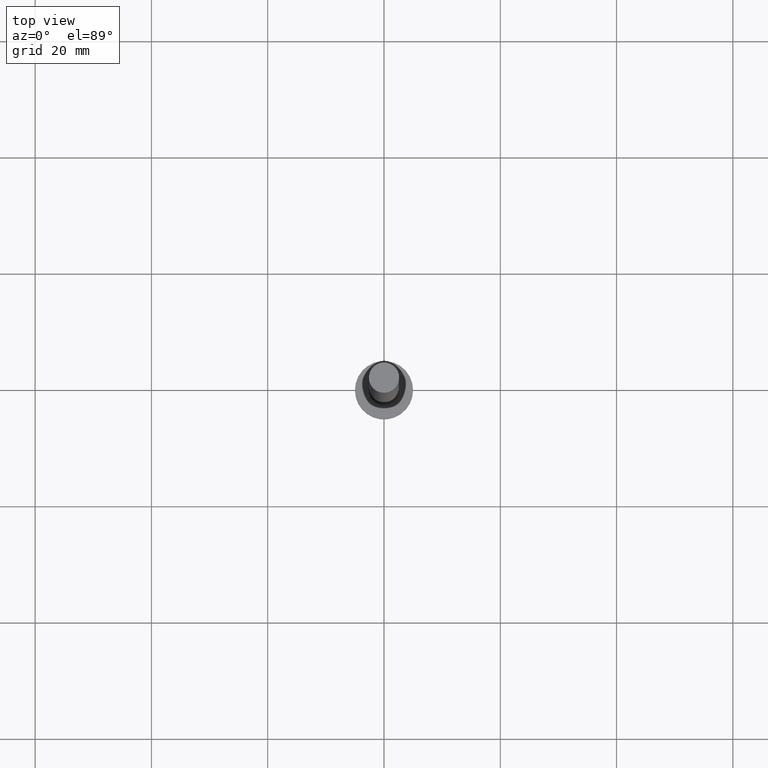
[diagram: clean part render]
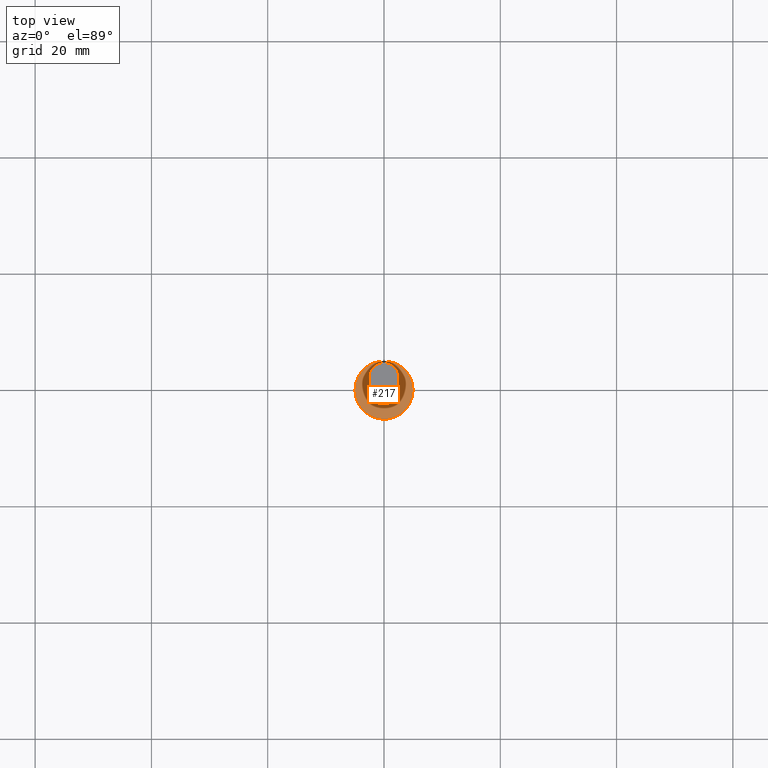
[diagram: same view with one face highlighted and labeled with its STEP entity id]
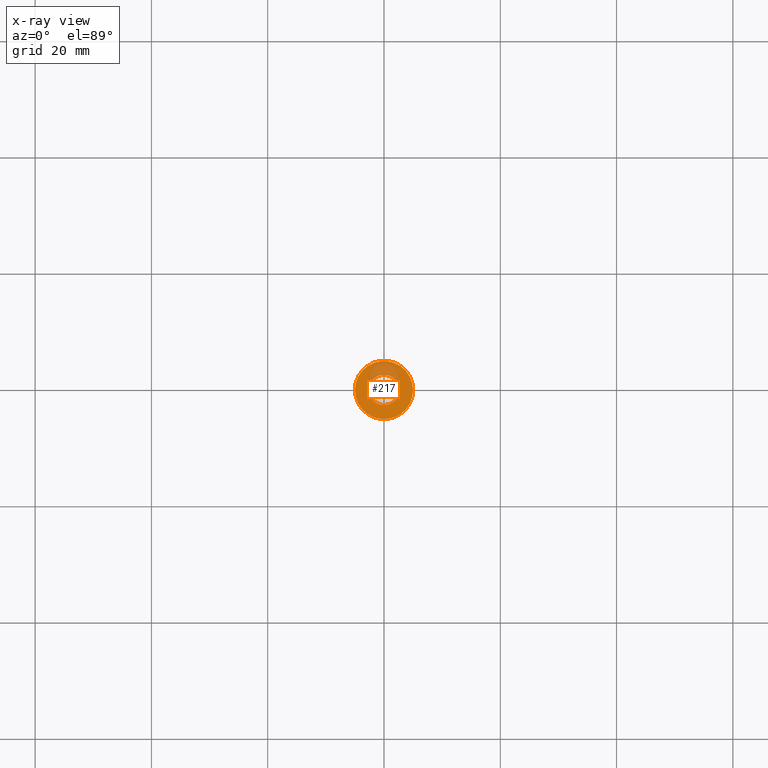
[diagram: x-ray of the same camera — body ghosted, the highlighted face saturated]
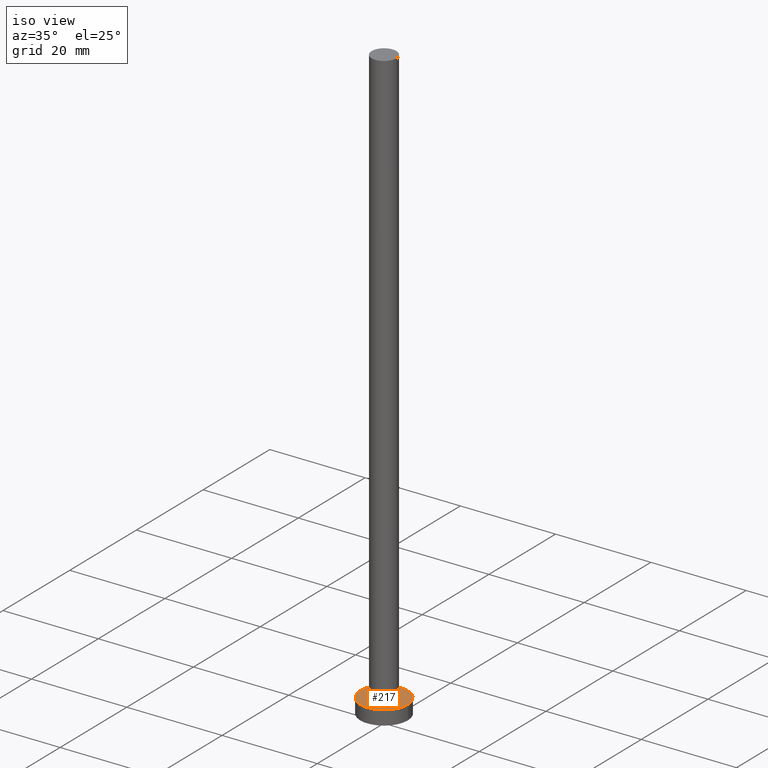
[diagram: same view with one face highlighted and labeled with its STEP entity id]
A machine part, top view. The second image highlights one B-rep face of the part: STEP entity #217.
The next image is the same camera in x-ray: the body ghosted, the highlighted face saturated — about 19% of this face is hidden behind the body in this view.
A second angle (iso view) of the same face is appended — the face is thin or edge-on in the first view.
In plain terms, the highlighted planar face has unit normal (0, 0, 1).
Its self-contained STEP definition (entity closure, byte-faithful):
#9 = DIRECTION ( 'NONE',  ( 0.000000000000000000, 0.000000000000000000, 1.000000000000000000 ) ) ;
#11 = CIRCLE ( 'NONE', #184, 5.000000000000000000 ) ;
#24 = VERTEX_POINT ( 'NONE', #225 ) ;
#29 = ORIENTED_EDGE ( 'NONE', *, *, #233, .F. ) ;
#31 = EDGE_CURVE ( 'NONE', #221, #209, #177, .T. ) ;
#32 = AXIS2_PLACEMENT_3D ( 'NONE', #206, #250, #67 ) ;
#35 = DIRECTION ( 'NONE',  ( 1.000000000000000000, 0.000000000000000000, 0.000000000000000000 ) ) ;
#43 = DIRECTION ( 'NONE',  ( 0.000000000000000000, 0.000000000000000000, 1.000000000000000000 ) ) ;
#45 = PLANE ( 'NONE',  #202 ) ;
#46 = DIRECTION ( 'NONE',  ( 1.000000000000000000, 0.000000000000000000, 0.000000000000000000 ) ) ;
#49 = AXIS2_PLACEMENT_3D ( 'NONE', #157, #43, #46 ) ;
#66 = EDGE_CURVE ( 'NONE', #132, #24, #148, .T. ) ;
#67 = DIRECTION ( 'NONE',  ( 1.000000000000000000, 0.000000000000000000, 0.000000000000000000 ) ) ;
#69 = CARTESIAN_POINT ( 'NONE',  ( 0.000000000000000000, 0.000000000000000000, 3.000000000000000000 ) ) ;
#83 = DIRECTION ( 'NONE',  ( 0.000000000000000000, 0.000000000000000000, 1.000000000000000000 ) ) ;
#86 = CARTESIAN_POINT ( 'NONE',  ( -5.000000000000000000, 0.000000000000000000, 3.000000000000000000 ) ) ;
#94 = EDGE_CURVE ( 'NONE', #24, #132, #11, .T. ) ;
#128 = DIRECTION ( 'NONE',  ( 1.000000000000000000, 0.000000000000000000, 0.000000000000000000 ) ) ;
#131 = FACE_BOUND ( 'NONE', #136, .T. ) ;
#132 = VERTEX_POINT ( 'NONE', #86 ) ;
#136 = EDGE_LOOP ( 'NONE', ( #204, #29 ) ) ;
#141 = CARTESIAN_POINT ( 'NONE',  ( 0.000000000000000000, 0.000000000000000000, 3.000000000000000000 ) ) ;
#148 = CIRCLE ( 'NONE', #49, 5.000000000000000000 ) ;
#157 = CARTESIAN_POINT ( 'NONE',  ( 0.000000000000000000, 0.000000000000000000, 3.000000000000000000 ) ) ;
#160 = EDGE_LOOP ( 'NONE', ( #179, #247 ) ) ;
#169 = DIRECTION ( 'NONE',  ( 1.000000000000000000, 0.000000000000000000, -0.000000000000000000 ) ) ;
#171 = CIRCLE ( 'NONE', #237, 2.600000000000000089 ) ;
#177 = CIRCLE ( 'NONE', #32, 2.600000000000000089 ) ;
#179 = ORIENTED_EDGE ( 'NONE', *, *, #66, .T. ) ;
#181 = CARTESIAN_POINT ( 'NONE',  ( 0.000000000000000000, 0.000000000000000000, 3.000000000000000000 ) ) ;
#184 = AXIS2_PLACEMENT_3D ( 'NONE', #141, #207, #35 ) ;
#198 = CARTESIAN_POINT ( 'NONE',  ( 2.600000000000000089, 3.184081677783117698E-16, 3.000000000000000000 ) ) ;
#202 = AXIS2_PLACEMENT_3D ( 'NONE', #181, #9, #169 ) ;
#204 = ORIENTED_EDGE ( 'NONE', *, *, #31, .F. ) ;
#206 = CARTESIAN_POINT ( 'NONE',  ( 0.000000000000000000, 0.000000000000000000, 3.000000000000000000 ) ) ;
#207 = DIRECTION ( 'NONE',  ( 0.000000000000000000, 0.000000000000000000, 1.000000000000000000 ) ) ;
#209 = VERTEX_POINT ( 'NONE', #198 ) ;
#216 = FACE_OUTER_BOUND ( 'NONE', #160, .T. ) ;
#217 = ADVANCED_FACE ( 'NONE', ( #131, #216 ), #45, .T. ) ;
#221 = VERTEX_POINT ( 'NONE', #252 ) ;
#225 = CARTESIAN_POINT ( 'NONE',  ( 5.000000000000000000, 6.123233995736766282E-16, 3.000000000000000000 ) ) ;
#233 = EDGE_CURVE ( 'NONE', #209, #221, #171, .T. ) ;
#237 = AXIS2_PLACEMENT_3D ( 'NONE', #69, #83, #128 ) ;
#247 = ORIENTED_EDGE ( 'NONE', *, *, #94, .T. ) ;
#250 = DIRECTION ( 'NONE',  ( 0.000000000000000000, 0.000000000000000000, 1.000000000000000000 ) ) ;
#252 = CARTESIAN_POINT ( 'NONE',  ( -2.600000000000000089, 0.000000000000000000, 3.000000000000000000 ) ) ;